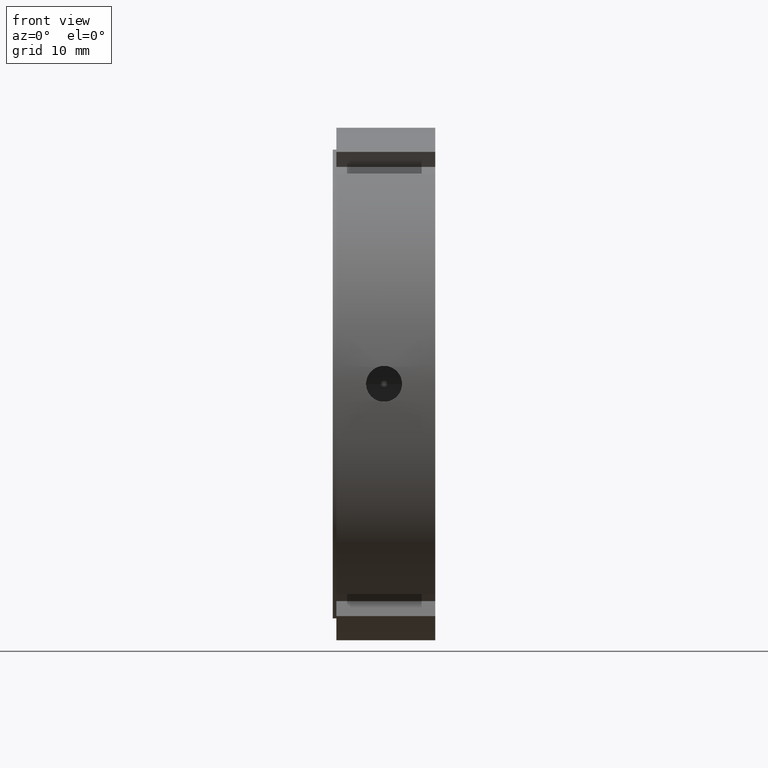
[diagram: clean part render]
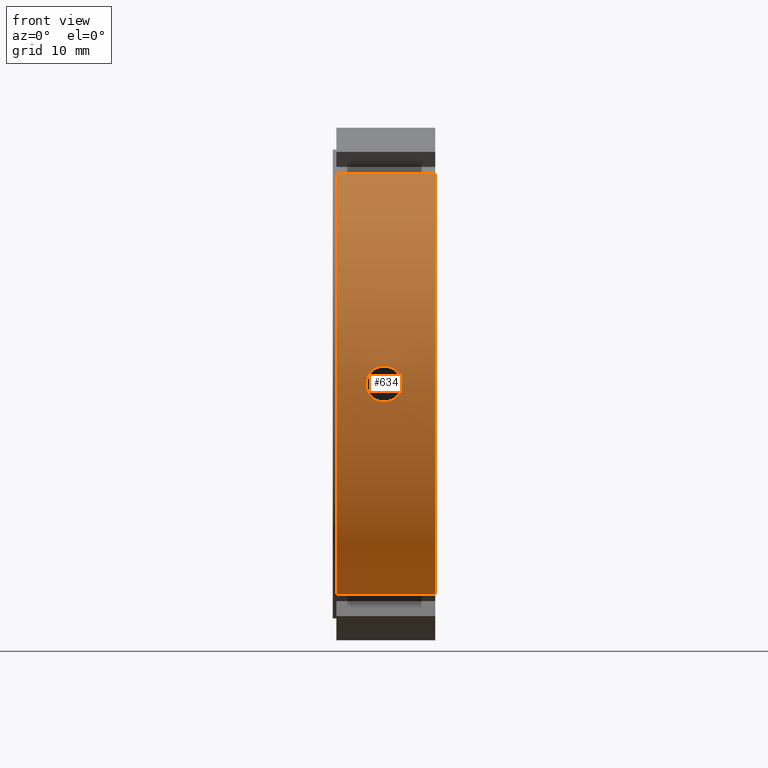
[diagram: same view with one face highlighted and labeled with its STEP entity id]
A machine part, front view. The second image highlights one B-rep face of the part: STEP entity #634.
In plain terms, the highlighted cylindrical surface (partial cylindrical patch) has radius 35 mm, axis along (1, 0, 0).
Its self-contained STEP definition (entity closure, byte-faithful):
#75=CARTESIAN_POINT('',(0.499999999999994,-20.033671985516026,-28.699337741082989));
#76=VERTEX_POINT('',#75);
#91=CARTESIAN_POINT('',(13.999999999999995,-20.033671985516023,-28.699337741082989));
#92=VERTEX_POINT('',#91);
#99=CARTESIAN_POINT('',(0.499999999999994,-20.033671985516026,-28.699337741082989));
#100=DIRECTION('',(1.0,0.0,0.0));
#101=VECTOR('',#100,13.500000000000000);
#102=LINE('',#99,#101);
#103=EDGE_CURVE('',#76,#92,#102,.T.);
#303=CARTESIAN_POINT('',(0.499999999999994,-20.033671985516001,28.699337741083003));
#304=VERTEX_POINT('',#303);
#313=CARTESIAN_POINT('',(13.999999999999995,-20.033671985516001,28.699337741083003));
#314=VERTEX_POINT('',#313);
#315=CARTESIAN_POINT('',(13.999999999999995,-20.033671985516005,28.699337741083003));
#316=DIRECTION('',(-1.0,0.0,0.0));
#317=VECTOR('',#316,13.500000000000000);
#318=LINE('',#315,#317);
#319=EDGE_CURVE('',#314,#304,#318,.T.);
#499=CARTESIAN_POINT('',(13.999999999999993,0.0,0.0));
#500=DIRECTION('',(1.0,0.0,0.0));
#501=DIRECTION('',(0.0,1.0,0.0));
#502=AXIS2_PLACEMENT_3D('',#499,#500,#501);
#503=CIRCLE('',#502,35.0);
#504=EDGE_CURVE('',#314,#92,#503,.T.);
#576=CARTESIAN_POINT('',(7.249999999999993,0.0,0.0));
#577=DIRECTION('',(1.0,0.0,0.0));
#578=DIRECTION('',(0.0,1.0,0.0));
#579=AXIS2_PLACEMENT_3D('',#576,#577,#578);
#580=CYLINDRICAL_SURFACE('',#579,35.0);
#581=ORIENTED_EDGE('',*,*,#103,.T.);
#582=ORIENTED_EDGE('',*,*,#504,.F.);
#583=ORIENTED_EDGE('',*,*,#319,.T.);
#584=CARTESIAN_POINT('',(0.499999999999994,0.0,0.0));
#585=DIRECTION('',(1.0,0.0,0.0));
#586=DIRECTION('',(0.0,1.0,0.0));
#587=AXIS2_PLACEMENT_3D('',#584,#585,#586);
#588=CIRCLE('',#587,34.999999999999993);
#589=EDGE_CURVE('',#304,#76,#588,.T.);
#590=ORIENTED_EDGE('',*,*,#589,.T.);
#591=EDGE_LOOP('',(#581,#582,#583,#590));
#592=FACE_OUTER_BOUND('',#591,.T.);
#593=CARTESIAN_POINT('',(6.999999999999994,-34.913547195179120,2.458500000000000));
#594=VERTEX_POINT('',#593);
#595=CARTESIAN_POINT('',(6.999999999999994,-34.913547195179120,2.458500000000000));
#596=CARTESIAN_POINT('',(7.308803977342720,-34.913547195179120,2.458500000000000));
#597=CARTESIAN_POINT('',(7.638121638273500,-34.918065917891127,2.396764626614350));
#598=CARTESIAN_POINT('',(8.243815084881785,-34.934384266980423,2.145834097688679));
#599=CARTESIAN_POINT('',(8.520199516624386,-34.945947991602736,1.956644526469862));
#600=CARTESIAN_POINT('',(8.956644346498578,-34.967652646960680,1.520199696595668));
#601=CARTESIAN_POINT('',(9.145834056158350,-34.979203912380719,1.243815184684811));
#602=CARTESIAN_POINT('',(9.396764694186132,-34.995493760468371,0.638121475611871));
#603=CARTESIAN_POINT('',(9.458499999999994,-35.0,0.308803722667592));
#604=CARTESIAN_POINT('',(9.458499999999994,-35.0,-0.308803722667592));
#605=CARTESIAN_POINT('',(9.396764694186134,-34.995493760468371,-0.638121475611870));
#606=CARTESIAN_POINT('',(9.145834056158352,-34.979203912380719,-1.243815184684810));
#607=CARTESIAN_POINT('',(8.956644346498580,-34.967652646960687,-1.520199696595668));
#608=CARTESIAN_POINT('',(8.520199516624386,-34.945947991602736,-1.956644526469862));
#609=CARTESIAN_POINT('',(8.243815084881785,-34.934384266980423,-2.145834097688679));
#610=CARTESIAN_POINT('',(7.638121638273500,-34.918065917891127,-2.396764626614350));
#611=CARTESIAN_POINT('',(7.308803977342720,-34.913547195179120,-2.458500000000000));
#612=CARTESIAN_POINT('',(6.691196022657269,-34.913547195179120,-2.458500000000000));
#613=CARTESIAN_POINT('',(6.361878361726489,-34.918065917891127,-2.396764626614350));
#614=CARTESIAN_POINT('',(5.756184915118203,-34.934384266980423,-2.145834097688679));
#615=CARTESIAN_POINT('',(5.479800483375602,-34.945947991602736,-1.956644526469862));
#616=CARTESIAN_POINT('',(5.043355653501408,-34.967652646960687,-1.520199696595669));
#617=CARTESIAN_POINT('',(4.854165943841637,-34.979203912380719,-1.243815184684810));
#618=CARTESIAN_POINT('',(4.603235305813855,-34.995493760468371,-0.638121475611870));
#619=CARTESIAN_POINT('',(4.541499999999994,-35.0,-0.308803722667593));
#620=CARTESIAN_POINT('',(4.541499999999994,-35.0,0.308803722667591));
#621=CARTESIAN_POINT('',(4.603235305813855,-34.995493760468371,0.638121475611869));
#622=CARTESIAN_POINT('',(4.854165943841637,-34.979203912380719,1.243815184684809));
#623=CARTESIAN_POINT('',(5.043355653501408,-34.967652646960687,1.520199696595668));
#624=CARTESIAN_POINT('',(5.479800483375602,-34.945947991602736,1.956644526469861));
#625=CARTESIAN_POINT('',(5.756184915118203,-34.934384266980423,2.145834097688679));
#626=CARTESIAN_POINT('',(6.361878361726489,-34.918065917891127,2.396764626614351));
#627=CARTESIAN_POINT('',(6.691196022657269,-34.913547195179120,2.458500000000000));
#628=CARTESIAN_POINT('',(6.999999999999994,-34.913547195179120,2.458500000000000));
#629=B_SPLINE_CURVE_WITH_KNOTS('',3,(#595,#596,#597,#598,#599,#600,#601,#602,#603,#604,#605,#606,#607,#608,#609,#610,#611,#612,#613,#614,#615,#616,#617,#618,#619,#620,#621,#622,#623,#624,#625,#626,#627,#628),.UNSPECIFIED.,.T.,.U.,(4,2,2,2,2,2,2,2,2,2,2,2,2,2,2,2,4),(0.0,0.092641193202818,0.185282386405636,0.277923503205913,0.370564620006191,0.463205736806468,0.555846853606746,0.648488046809564,0.741129240012382,0.833770433215200,0.926411626418017,1.019052743218295,1.111693860018573,1.204334976818850,1.296976093619128,1.389617286821946,1.482258480024764),.UNSPECIFIED.);
#630=EDGE_CURVE('',#594,#594,#629,.T.);
#631=ORIENTED_EDGE('',*,*,#630,.T.);
#632=EDGE_LOOP('',(#631));
#633=FACE_BOUND('',#632,.T.);
#634=ADVANCED_FACE('',(#592,#633),#580,.T.);